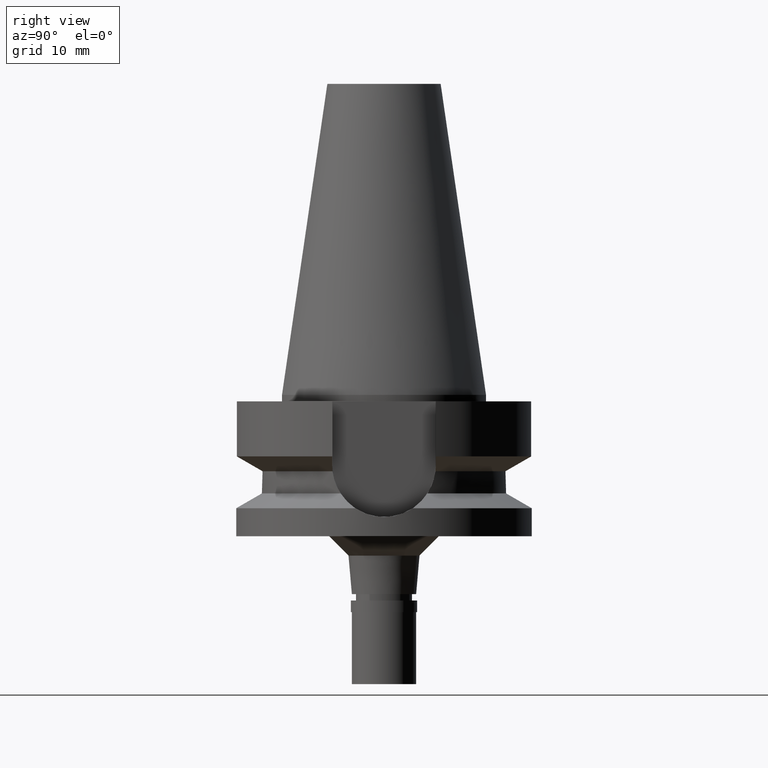
[diagram: clean part render]
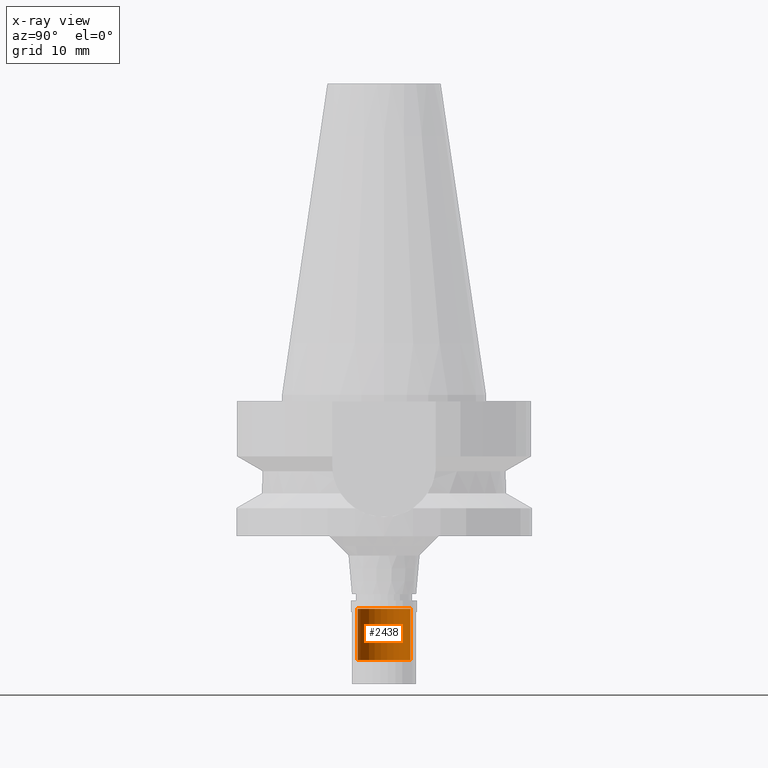
[diagram: x-ray — body ghosted, one internal face saturated and labeled with its STEP entity id]
A machine part, right view, then the same camera in x-ray: the body is ghosted and one INTERNAL B-rep face — a face not visible from any outside direction — is saturated and labeled: STEP entity #2438.
In plain terms, the highlighted cylindrical surface (edge-blend (fillet) strip) has radius 4.1 mm, axis along (0, 0, -1).
Its self-contained STEP definition (entity closure, byte-faithful):
#151 = ORIENTED_EDGE ( 'NONE', *, *, #1294, .T. ) ;
#200 = CARTESIAN_POINT ( 'NONE',  ( 0.0000000000000000000, 4.100000000000000533, -33.30000000000000426 ) ) ;
#233 = LINE ( 'NONE', #1817, #2055 ) ;
#237 = CIRCLE ( 'NONE', #1947, 4.100000000000000533 ) ;
#303 = CARTESIAN_POINT ( 'NONE',  ( 0.0000000000000000000, 1.872301258875999904E-14, 52.88499999999999801 ) ) ;
#316 = CYLINDRICAL_SURFACE ( 'NONE', #1295, 4.100000000000000533 ) ;
#402 = EDGE_CURVE ( 'NONE', #1890, #917, #2101, .T. ) ;
#699 = DIRECTION ( 'NONE',  ( 0.0000000000000000000, -1.000000000000000000, 0.0000000000000000000 ) ) ;
#869 = CARTESIAN_POINT ( 'NONE',  ( 0.0000000000000000000, 4.100000000000000533, -33.30000000000000426 ) ) ;
#916 = ORIENTED_EDGE ( 'NONE', *, *, #1256, .T. ) ;
#917 = VERTEX_POINT ( 'NONE', #2636 ) ;
#1256 = EDGE_CURVE ( 'NONE', #2765, #1494, #237, .T. ) ;
#1294 = EDGE_CURVE ( 'NONE', #1494, #1890, #1916, .T. ) ;
#1295 = AXIS2_PLACEMENT_3D ( 'NONE', #303, #1478, #1461 ) ;
#1433 = EDGE_LOOP ( 'NONE', ( #1851, #1831, #916, #151 ) ) ;
#1461 = DIRECTION ( 'NONE',  ( 0.0000000000000000000, -1.000000000000000000, 0.0000000000000000000 ) ) ;
#1478 = DIRECTION ( 'NONE',  ( 0.0000000000000000000, 0.0000000000000000000, -1.000000000000000000 ) ) ;
#1494 = VERTEX_POINT ( 'NONE', #869 ) ;
#1560 = CARTESIAN_POINT ( 'NONE',  ( 0.0000000000000000000, 1.872301258875999904E-14, -41.30000000000000426 ) ) ;
#1751 = EDGE_CURVE ( 'NONE', #2765, #917, #233, .T. ) ;
#1817 = CARTESIAN_POINT ( 'NONE',  ( 0.0000000000000000000, -4.100000000000000533, -33.30000000000000426 ) ) ;
#1831 = ORIENTED_EDGE ( 'NONE', *, *, #1751, .F. ) ;
#1851 = ORIENTED_EDGE ( 'NONE', *, *, #402, .T. ) ;
#1867 = DIRECTION ( 'NONE',  ( 0.0000000000000000000, 0.0000000000000000000, -1.000000000000000000 ) ) ;
#1890 = VERTEX_POINT ( 'NONE', #2151 ) ;
#1916 = LINE ( 'NONE', #200, #2140 ) ;
#1947 = AXIS2_PLACEMENT_3D ( 'NONE', #2804, #1867, #699 ) ;
#2055 = VECTOR ( 'NONE', #2766, 1000.000000000000000 ) ;
#2067 = DIRECTION ( 'NONE',  ( 0.0000000000000000000, 0.0000000000000000000, -1.000000000000000000 ) ) ;
#2101 = CIRCLE ( 'NONE', #2483, 4.100000000000000533 ) ;
#2140 = VECTOR ( 'NONE', #2067, 1000.000000000000000 ) ;
#2151 = CARTESIAN_POINT ( 'NONE',  ( 0.0000000000000000000, 4.100000000000000533, -41.30000000000000426 ) ) ;
#2438 = ADVANCED_FACE ( 'NONE', ( #2646 ), #316, .T. ) ;
#2483 = AXIS2_PLACEMENT_3D ( 'NONE', #1560, #2503, #2689 ) ;
#2503 = DIRECTION ( 'NONE',  ( 0.0000000000000000000, 0.0000000000000000000, 1.000000000000000000 ) ) ;
#2556 = CARTESIAN_POINT ( 'NONE',  ( 0.0000000000000000000, -4.100000000000000533, -33.30000000000000426 ) ) ;
#2636 = CARTESIAN_POINT ( 'NONE',  ( 0.0000000000000000000, -4.100000000000000533, -41.30000000000000426 ) ) ;
#2646 = FACE_OUTER_BOUND ( 'NONE', #1433, .T. ) ;
#2689 = DIRECTION ( 'NONE',  ( 0.0000000000000000000, 1.000000000000000000, 0.0000000000000000000 ) ) ;
#2765 = VERTEX_POINT ( 'NONE', #2556 ) ;
#2766 = DIRECTION ( 'NONE',  ( 0.0000000000000000000, 0.0000000000000000000, -1.000000000000000000 ) ) ;
#2804 = CARTESIAN_POINT ( 'NONE',  ( 0.0000000000000000000, 1.872301258875999904E-14, -33.30000000000000426 ) ) ;